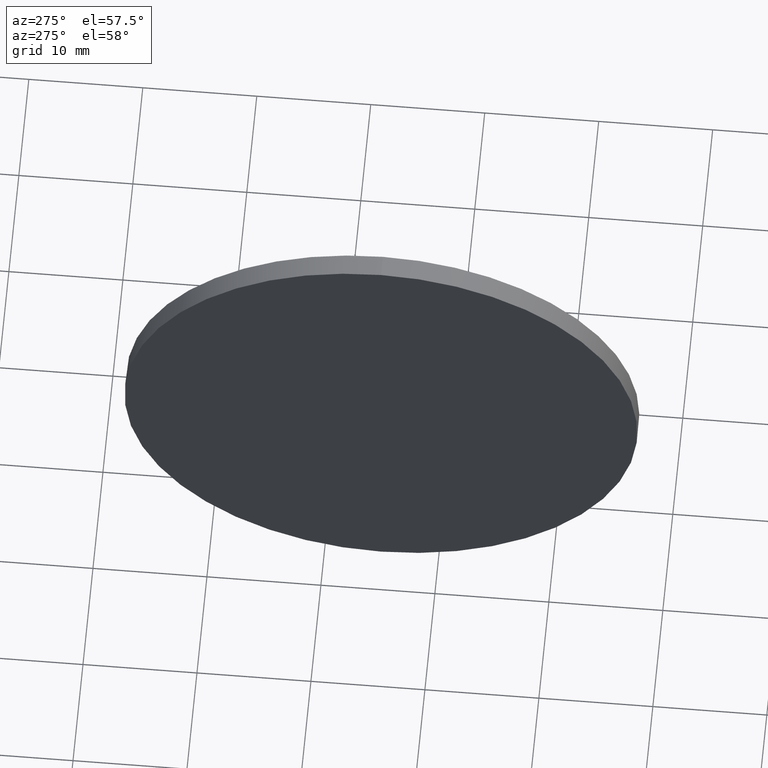
[diagram: clean part render]
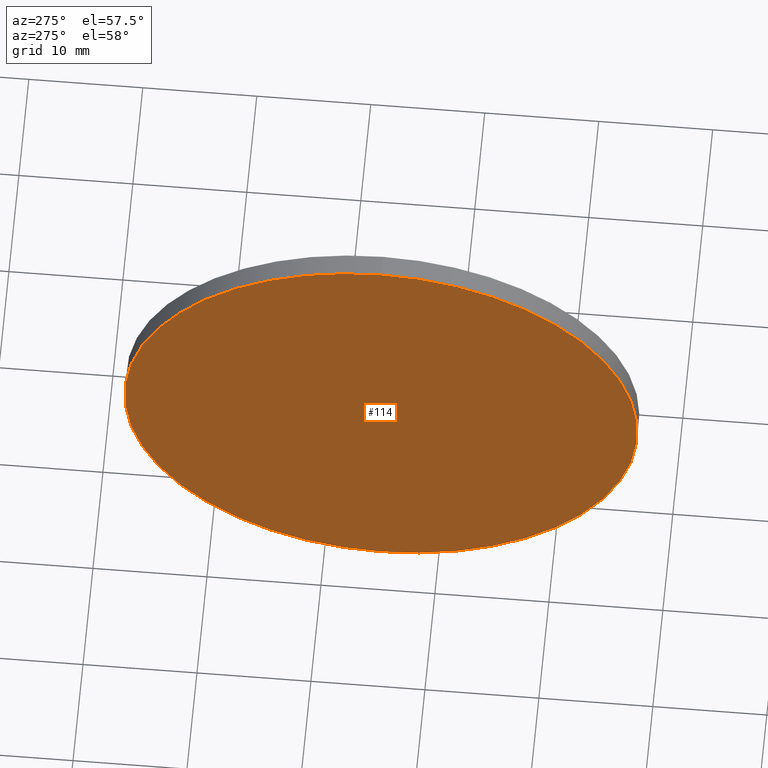
[diagram: same view with one face highlighted and labeled with its STEP entity id]
A machine part, auxiliary view. The second image highlights one B-rep face of the part: STEP entity #114.
In plain terms, the highlighted planar face has unit normal (1, 0, 0).
Its self-contained STEP definition (entity closure, byte-faithful):
#9 = AXIS2_PLACEMENT_3D ( 'NONE', #157, #145, #174 ) ;
#22 = EDGE_LOOP ( 'NONE', ( #131, #107 ) ) ;
#33 = CIRCLE ( 'NONE', #9, 22.50000000000000700 ) ;
#40 = CARTESIAN_POINT ( 'NONE',  ( 113.3137819577659700, 65.02094537996225700, -22.50000000000000700 ) ) ;
#45 = CARTESIAN_POINT ( 'NONE',  ( 113.3137819577659700, 65.02094537996225700, 0.0000000000000000000 ) ) ;
#54 = CARTESIAN_POINT ( 'NONE',  ( 113.3137819577659700, 65.02094537996225700, 22.50000000000000700 ) ) ;
#60 = AXIS2_PLACEMENT_3D ( 'NONE', #120, #156, #170 ) ;
#62 = DIRECTION ( 'NONE',  ( -1.000000000000000000, -0.0000000000000000000, -0.0000000000000000000 ) ) ;
#70 = PLANE ( 'NONE',  #60 ) ;
#76 = DIRECTION ( 'NONE',  ( 0.0000000000000000000, 0.0000000000000000000, 1.000000000000000000 ) ) ;
#88 = AXIS2_PLACEMENT_3D ( 'NONE', #45, #62, #76 ) ;
#96 = VERTEX_POINT ( 'NONE', #54 ) ;
#101 = EDGE_CURVE ( 'NONE', #96, #129, #33, .T. ) ;
#107 = ORIENTED_EDGE ( 'NONE', *, *, #152, .T. ) ;
#114 = ADVANCED_FACE ( 'NONE', ( #186 ), #70, .F. ) ;
#120 = CARTESIAN_POINT ( 'NONE',  ( 113.3137819577659700, 65.02094537996225700, 0.0000000000000000000 ) ) ;
#129 = VERTEX_POINT ( 'NONE', #40 ) ;
#131 = ORIENTED_EDGE ( 'NONE', *, *, #101, .T. ) ;
#145 = DIRECTION ( 'NONE',  ( -1.000000000000000000, -0.0000000000000000000, -0.0000000000000000000 ) ) ;
#152 = EDGE_CURVE ( 'NONE', #129, #96, #153, .T. ) ;
#153 = CIRCLE ( 'NONE', #88, 22.50000000000000700 ) ;
#156 = DIRECTION ( 'NONE',  ( 1.000000000000000000, 0.0000000000000000000, 0.0000000000000000000 ) ) ;
#157 = CARTESIAN_POINT ( 'NONE',  ( 113.3137819577659700, 65.02094537996225700, 0.0000000000000000000 ) ) ;
#170 = DIRECTION ( 'NONE',  ( 0.0000000000000000000, 0.0000000000000000000, -1.000000000000000000 ) ) ;
#174 = DIRECTION ( 'NONE',  ( 0.0000000000000000000, 0.0000000000000000000, 1.000000000000000000 ) ) ;
#186 = FACE_OUTER_BOUND ( 'NONE', #22, .T. ) ;